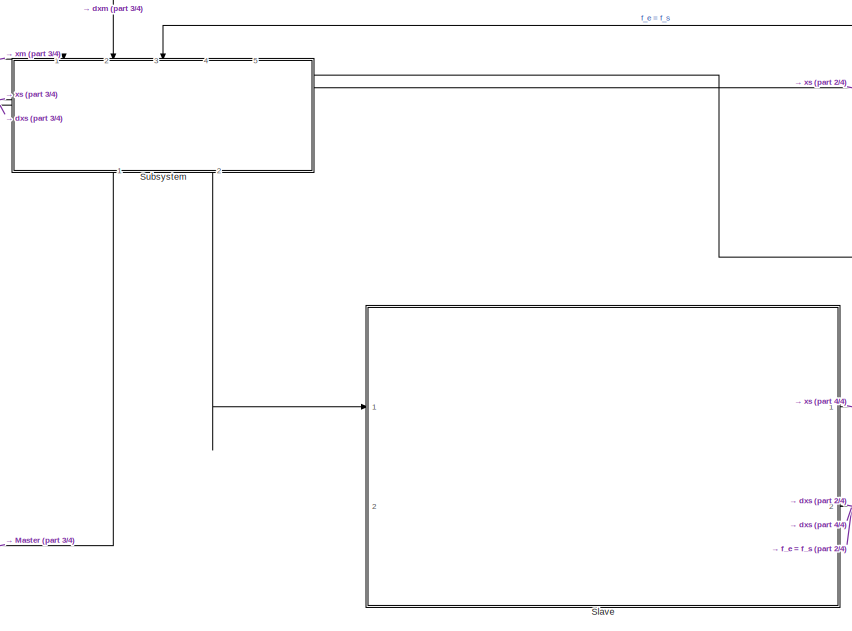
[diagram: root canvas - part 1/4, top center region]
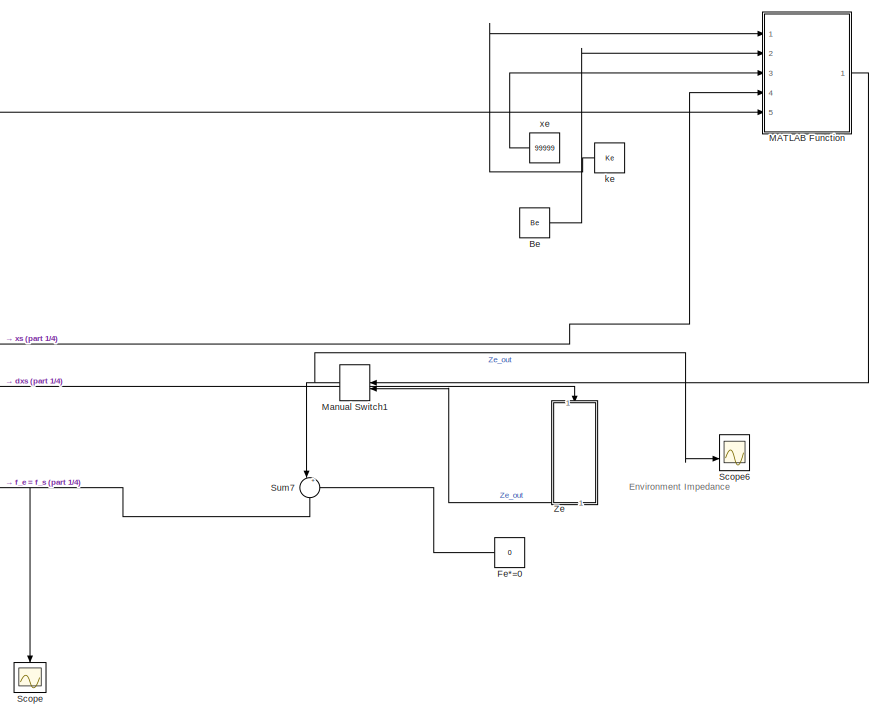
[diagram: root canvas - part 2/4, middle right region]
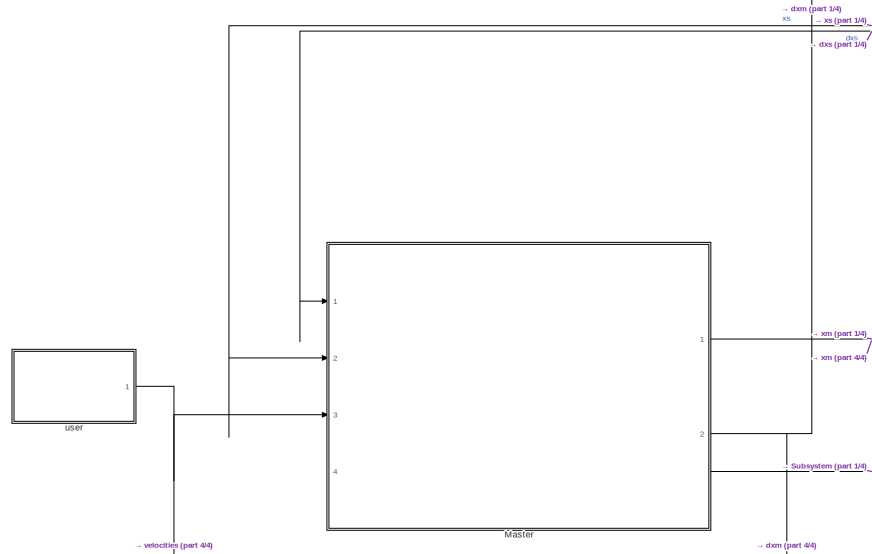
[diagram: root canvas - part 3/4, top left region]
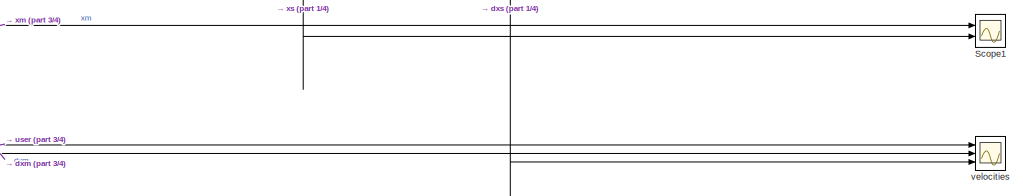
[diagram: root canvas - part 4/4, bottom center region]
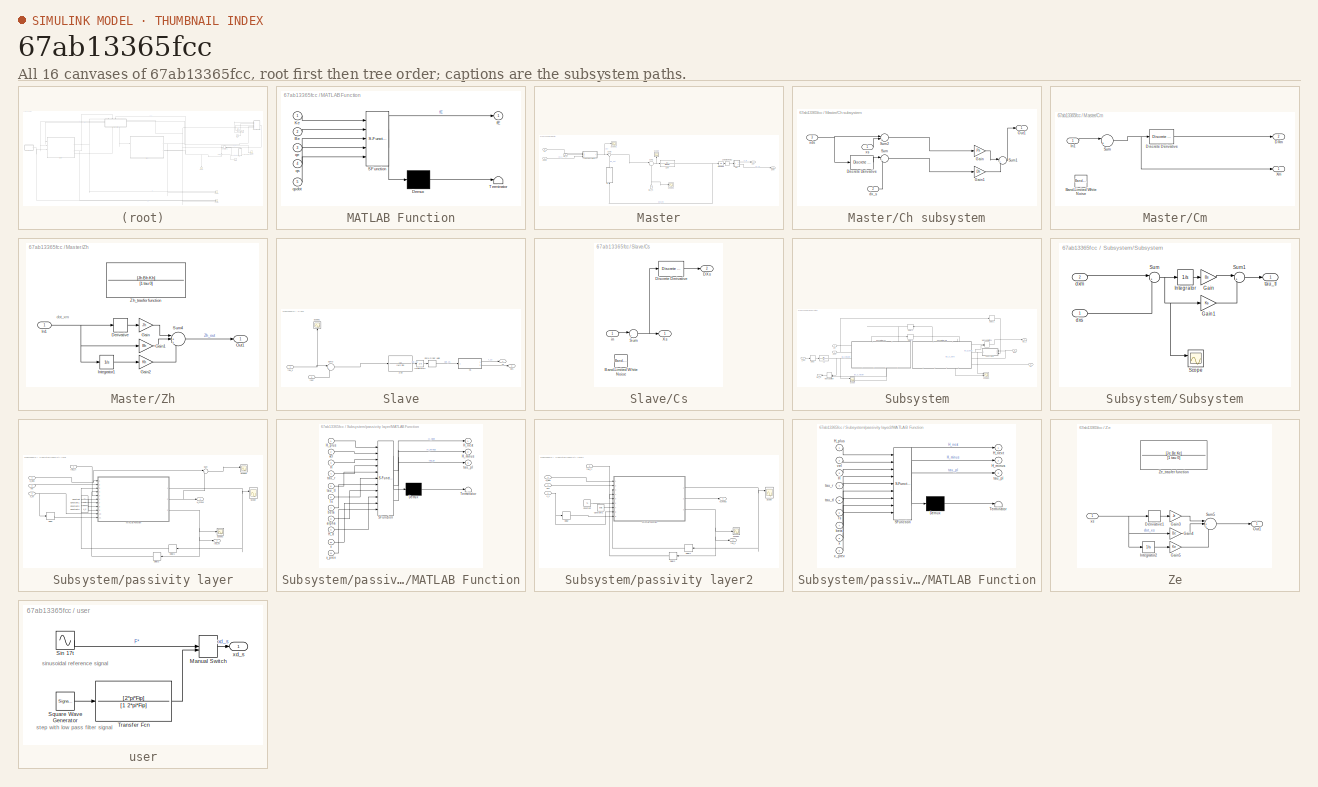
[diagram: thumbnail index - all 16 canvases of the model, root first then tree order]
MODEL slx_67ab13365fcc
KIND model
CONFIG AbsTol = auto
CONFIG EnableMultiTasking = off
CONFIG FixedStep = Ts
CONFIG MaxStep = auto
CONFIG MinStep = auto
CONFIG RelTol = 1e-3
CONFIG SampleTimeConstraint = Unconstrained
CONFIG SolverName = FixedStepAuto
CONFIG StartTime = 0.0
CONFIG StopTime = 10
BLOCK [Constant] Be
  NameLocation = top
  Value = Be
BLOCK [Constant] Fe*=0
  Value = 0
BLOCK [SubSystem] MATLAB Function
  ErrorFcn = Stateflow.Translate.translate
  PermitHierarchicalResolution = ExplicitOnly
  Ports = [5, 1]
  RequestExecContextInheritance = off
  SFBlockType = MATLAB Function
  TreatAsAtomicUnit = on
BLOCK [Demux] MATLAB Function/ Demux 
  Outputs = 1
  Ports = [1, 1]
BLOCK [S-Function] MATLAB Function/ SFunction 
  EnableBusSupport = on
  FunctionName = sf_sfun
  PortCounts = [5 2]
  Ports = [5, 2]
  SFcnIsStateOwnerBlock = off
  SFunctionDeploymentMode = off
  Tag = Stateflow S-Function 2
BLOCK [Terminator] MATLAB Function/ Terminator 
BLOCK [Inport] MATLAB Function/Be
  Port = 2
BLOCK [Inport] MATLAB Function/Ke
BLOCK [Outport] MATLAB Function/fE
BLOCK [Inport] MATLAB Function/qe
  Port = 3
BLOCK [Inport] MATLAB Function/qs
  Port = 4
BLOCK [Inport] MATLAB Function/qsdot
  Port = 5
BLOCK [ManualSwitch] Manual Switch1
  CurrentSetting = 0
  NameLocation = top
BLOCK [SubSystem] Master
  PortSchema = {"entries":[{"content":{"sides":[{"content":{"connectorIds":["In1","In2","In3"]},"type":"ConnectorPlacement.EquallySpacedRectSide","uuid":"1611af17-d019-4ea0-b30f-82f2e4a8e750"},{"content":{"connectorIds":["Out1","Out2"],"side":"RIGHT"},"type":"ConnectorPlacement.EquallySpacedRectSide","uuid":"216ac5d0-4324-4f7d-99ca-2c077bed0ff3"},{"content":{"connectorIds":["In4"],"side":"TOP"},"type":"Connector...<+264ch>
  Ports = [4, 2]
  RequestExecContextInheritance = off
BLOCK [TransferFcn] Master/1//Zm
  Denominator = [Mm Dm]
  NameLocation = top
BLOCK [SubSystem] Master/Ch subsystem
  Ports = [3, 1]
  RequestExecContextInheritance = off
BLOCK [Reference] Master/Ch subsystem/Discrete Derivative  REF=simulink/Discrete/Discrete Derivative
  Ports = [1, 1]
  SourceBlock = simulink/Discrete/Discrete Derivative
  SourceProductBaseCode = SL
  SourceType = Discrete Derivative
BLOCK [Gain] Master/Ch subsystem/Gain
  Gain = Ph
BLOCK [Gain] Master/Ch subsystem/Gain1
  Gain = Dh
BLOCK [Outport] Master/Ch subsystem/Out1
BLOCK [Sum] Master/Ch subsystem/Sum
  Inputs = |+-
  Ports = [2, 1]
BLOCK [Sum] Master/Ch subsystem/Sum1
  Inputs = |++
  Ports = [2, 1]
BLOCK [Sum] Master/Ch subsystem/Sum2
  Inputs = |+-
  Ports = [2, 1]
BLOCK [Inport] Master/Ch subsystem/dx_s
  Port = 2
BLOCK [Inport] Master/Ch subsystem/xds
  Port = 3
BLOCK [Inport] Master/Ch subsystem/xs
BLOCK [SubSystem] Master/Cm
  Ports = [1, 2]
  RequestExecContextInheritance = off
BLOCK [Reference] Master/Cm/Band-Limited White Noise  REF=simulink/Sources/Band-Limited
White Noise
  Ports = [0, 1]
  SourceBlock = simulink/Sources/Band-Limited\nWhite Noise
  SourceProductBaseCode = SL
  SourceType = Band-Limited White Noise.
BLOCK [Outport] Master/Cm/DXm
  Port = 2
BLOCK [Reference] Master/Cm/Discrete Derivative  REF=simulink/Discrete/Discrete Derivative
  Ports = [1, 1]
  SourceBlock = simulink/Discrete/Discrete Derivative
  SourceProductBaseCode = SL
  SourceType = Discrete Derivative
BLOCK [Inport] Master/Cm/In1
BLOCK [Sum] Master/Cm/Sum
  Inputs = |++
  Ports = [2, 1]
BLOCK [Outport] Master/Cm/Xm
BLOCK [Outport] Master/DXm
  Port = 2
BLOCK [Integrator] Master/Integrator3
  Ports = [1, 1]
BLOCK [Scope] Master/Scope
  Floating = off
  NameLocation = right
  NumInputPorts = 1
  Ports = [1]
  ScopeSpecificationString = Simulink.scopes.TimeScopeBlockCfg('CurrentConfiguration', extmgr.ConfigurationSet(extmgr.Configuration('Core','General UI',true),extmgr.Configuration('Core','Source UI',true),extmgr.Configuration('Sources','WiredSimulink',true,'DataLoggingVariableName','ScopeData3'),extmgr.Configuration('Visuals','Time Domain',true,'SerializedDisplays',{struct('MinYLimReal','-4.96228','MaxYLimReal','18.04826','YLa...<+1483ch>
BLOCK [Scope] Master/Scope1
  Floating = off
  NumInputPorts = 1
  Ports = [1]
  ScopeSpecificationString = Simulink.scopes.TimeScopeBlockCfg('CurrentConfiguration', extmgr.ConfigurationSet(extmgr.Configuration('Core','General UI',true),extmgr.Configuration('Core','Source UI',true),extmgr.Configuration('Sources','WiredSimulink',true,'DataLoggingVariableName','ScopeData4'),extmgr.Configuration('Visuals','Time Domain',true,'SerializedDisplays',{struct('MinYLimReal','-23.29207','MaxYLimReal','24.17639','YL...<+1393ch>
BLOCK [Scope] Master/Scope2
  Floating = off
  NumInputPorts = 1
  Ports = [1]
  ScopeSpecificationString = Simulink.scopes.TimeScopeBlockCfg('CurrentConfiguration', extmgr.ConfigurationSet(extmgr.Configuration('Core','General UI',true),extmgr.Configuration('Core','Source UI',true),extmgr.Configuration('Sources','WiredSimulink',true,'DataLoggingVariableName','ScopeData3'),extmgr.Configuration('Visuals','Time Domain',true,'SerializedDisplays',{struct('MinYLimReal','-4.41108','MaxYLimReal','4.01128','YLab...<+1364ch>
BLOCK [Sum] Master/Sum1
  Inputs = |+-
  Ports = [2, 1]
BLOCK [Sum] Master/Sum2
  Inputs = |+-
  Ports = [2, 1]
BLOCK [ZeroOrderHold] Master/Zero-Order Hold2
  SampleTime = -1
BLOCK [SubSystem] Master/Zh
  NameLocation = right
  Ports = [1, 1]
  RequestExecContextInheritance = off
BLOCK [Derivative] Master/Zh/Derivative
BLOCK [Gain] Master/Zh/Gain
  Gain = Jh
BLOCK [Gain] Master/Zh/Gain1
  Gain = Bh
BLOCK [Gain] Master/Zh/Gain2
  Gain = Kh
BLOCK [Inport] Master/Zh/In1
BLOCK [Integrator] Master/Zh/Integrator1
  Ports = [1, 1]
BLOCK [Outport] Master/Zh/Out1
BLOCK [Sum] Master/Zh/Sum4
  Inputs = |+++
  Ports = [3, 1]
BLOCK [TransferFcn] Master/Zh/Zh_trasfer function
  Commented = on
  Denominator = [1 tau 0]
  NameLocation = right
  Numerator = [Jh Bh Kh]
BLOCK [Inport] Master/dx_s
BLOCK [Inport] Master/pose
  Port = 3
BLOCK [Inport] Master/tau_m
  NameLocation = right
  Port = 4
BLOCK [Outport] Master/xm
BLOCK [Inport] Master/xs
  Port = 2
BLOCK [Scope] Scope
  Floating = off
  NameLocation = left
  NumInputPorts = 1
  Ports = [1]
  ScopeSpecificationString = Simulink.scopes.TimeScopeBlockCfg('CurrentConfiguration', extmgr.ConfigurationSet(extmgr.Configuration('Core','General UI',true),extmgr.Configuration('Core','Source UI',true),extmgr.Configuration('Sources','WiredSimulink',true,'DataLoggingVariableName','ScopeData2'),extmgr.Configuration('Visuals','Time Domain',true,'SerializedDisplays',{struct('MinYLimReal','-4.21999','MaxYLimReal','4.20821','YLab...<+1403ch>
BLOCK [Scope] Scope1
  Floating = off
  NumInputPorts = 2
  Ports = [2]
  ScopeSpecificationString = Simulink.scopes.TimeScopeBlockCfg('CurrentConfiguration', extmgr.ConfigurationSet(extmgr.Configuration('Core','General UI',true,'FigureColor',[0.941176470588235 0.941176470588235 0.941176470588235]),extmgr.Configuration('Core','Source UI',true),extmgr.Configuration('Sources','WiredSimulink',true,'DataLoggingVariableName','ScopeData1'),extmgr.Configuration('Visuals','Time Domain',true,'SerializedDi...<+1775ch>
BLOCK [Scope] Scope6
  Floating = off
  NumInputPorts = 2
  Ports = [2]
  ScopeSpecificationString = Simulink.scopes.TimeScopeBlockCfg('CurrentConfiguration', extmgr.ConfigurationSet(extmgr.Configuration('Core','General UI',true),extmgr.Configuration('Core','Source UI',true),extmgr.Configuration('Sources','WiredSimulink',true,'DataLoggingVariableName','ScopeData7'),extmgr.Configuration('Visuals','Time Domain',true,'SerializedDisplays',{struct('MinYLimReal','-1.00000','MaxYLimReal','1.00000','YLab...<+2090ch>
BLOCK [SubSystem] Slave
  PortSchema = {"entries":[{"content":{"sides":[{"content":{"connectorIds":["In1"]},"type":"ConnectorPlacement.EquallySpacedRectSide","uuid":"78b98c26-b3b3-4c1c-a2a9-2b1f81ca7a96"},{"content":{"connectorIds":["Out1","Out2","In2"],"side":"RIGHT"},"type":"ConnectorPlacement.EquallySpacedRectSide","uuid":"d1781ab8-1e84-4ce0-bcac-f4a6da9bce42"},{"content":{"connectorIds":[],"side":"TOP"},"type":"ConnectorPlacement.E...<+253ch>
  Ports = [2, 2]
  RequestExecContextInheritance = off
BLOCK [TransferFcn] Slave/1//Zs
  Denominator = [Ms Ds]
  NameLocation = top
BLOCK [SubSystem] Slave/Cs
  Ports = [1, 2]
  RequestExecContextInheritance = off
BLOCK [Reference] Slave/Cs/Band-Limited White Noise  REF=simulink/Sources/Band-Limited
White Noise
  Ports = [0, 1]
  SourceBlock = simulink/Sources/Band-Limited\nWhite Noise
  SourceProductBaseCode = SL
  SourceType = Band-Limited White Noise.
BLOCK [Outport] Slave/Cs/DXs
  Port = 2
BLOCK [Reference] Slave/Cs/Discrete Derivative  REF=simulink/Discrete/Discrete Derivative
  Ports = [1, 1]
  SourceBlock = simulink/Discrete/Discrete Derivative
  SourceProductBaseCode = SL
  SourceType = Discrete Derivative
BLOCK [Sum] Slave/Cs/Sum
  Inputs = |++
  Ports = [2, 1]
BLOCK [Outport] Slave/Cs/Xs
BLOCK [Inport] Slave/Cs/in
BLOCK [Integrator] Slave/Integrator2
  Ports = [1, 1]
BLOCK [Scope] Slave/Scope1
  Floating = off
  NameLocation = right
  NumInputPorts = 1
  Ports = [1]
  ScopeSpecificationString = Simulink.scopes.TimeScopeBlockCfg('CurrentConfiguration', extmgr.ConfigurationSet(extmgr.Configuration('Core','General UI',true),extmgr.Configuration('Core','Source UI',true),extmgr.Configuration('Sources','WiredSimulink',true,'DataLoggingVariableName','ScopeData4'),extmgr.Configuration('Visuals','Time Domain',true,'SerializedDisplays',{struct('MinYLimReal','-46.74637','MaxYLimReal','38.49207','YL...<+1370ch>
BLOCK [Sum] Slave/Sum3
  Inputs = |+-
  Ports = [2, 1]
BLOCK [ZeroOrderHold] Slave/Zero-Order Hold
  SampleTime = -1
BLOCK [Outport] Slave/dxs
  Port = 2
BLOCK [Inport] Slave/fext
  Port = 2
BLOCK [Inport] Slave/tau_s
BLOCK [Outport] Slave/xs
BLOCK [SubSystem] Subsystem
  NameLocation = left
  Ports = [5, 2]
  RequestExecContextInheritance = off
BLOCK [Delay] Subsystem/Delay
  DelayLength = 1
  InputPortMap = u0
  Ports = [1, 1]
  SampleTime = Ts
BLOCK [Delay] Subsystem/Delay1
  DelayLength = 1
  InputPortMap = u0
  Ports = [1, 1]
  SampleTime = Ts
BLOCK [Delay] Subsystem/Delay2
  DelayLength = delay
  InputPortMap = u0
  NameLocation = top
  Ports = [1, 1]
  SampleTime = Ts
BLOCK [Delay] Subsystem/Delay3
  DelayLength = delay
  InputPortMap = u0
  Ports = [1, 1]
  SampleTime = Ts
BLOCK [ManualSwitch] Subsystem/Manual Switch
  CurrentSetting = 0
  NameLocation = top
BLOCK [ManualSwitch] Subsystem/Manual Switch1
BLOCK [Scope] Subsystem/Scope
  Floating = off
  NumInputPorts = 2
  Ports = [2]
  ScopeSpecificationString = Simulink.scopes.TimeScopeBlockCfg('CurrentConfiguration', extmgr.ConfigurationSet(extmgr.Configuration('Core','General UI',true,'FigureColor',[0.941176470588235 0.941176470588235 0.941176470588235]),extmgr.Configuration('Core','Source UI',true),extmgr.Configuration('Sources','WiredSimulink',true,'DataLoggingVariableName','ScopeData1'),extmgr.Configuration('Visuals','Time Domain',true,'SerializedDi...<+1782ch>
BLOCK [Scope] Subsystem/Scope2
  Floating = off
  NumInputPorts = 2
  Ports = [2]
  ScopeSpecificationString = Simulink.scopes.TimeScopeBlockCfg('CurrentConfiguration', extmgr.ConfigurationSet(extmgr.Configuration('Core','General UI',true,'FigureColor',[0.941176470588235 0.941176470588235 0.941176470588235]),extmgr.Configuration('Core','Source UI',true),extmgr.Configuration('Sources','WiredSimulink',true,'DataLoggingVariableName','ScopeData1'),extmgr.Configuration('Visuals','Time Domain',true,'SerializedDi...<+1790ch>
BLOCK [SubSystem] Subsystem/Subsystem
  NameLocation = top
  Ports = [2, 1]
  RequestExecContextInheritance = off
BLOCK [Gain] Subsystem/Subsystem/Gain
  Gain = Bs
BLOCK [Gain] Subsystem/Subsystem/Gain1
  Gain = Ks
BLOCK [Integrator] Subsystem/Subsystem/Integrator
  Ports = [1, 1]
BLOCK [Scope] Subsystem/Subsystem/Scope
  Floating = off
  NumInputPorts = 2
  Ports = [2]
  ScopeSpecificationString = Simulink.scopes.TimeScopeBlockCfg('CurrentConfiguration', extmgr.ConfigurationSet(extmgr.Configuration('Core','General UI',true),extmgr.Configuration('Core','Source UI',true),extmgr.Configuration('Sources','WiredSimulink',true,'DataLoggingVariableName','ScopeData5'),extmgr.Configuration('Visuals','Time Domain',true,'SerializedDisplays',{struct('MinYLimReal','-0.00046','MaxYLimReal','0.00031','YLab...<+1464ch>
BLOCK [Sum] Subsystem/Subsystem/Sum
  Inputs = |+-
  Ports = [2, 1]
BLOCK [Sum] Subsystem/Subsystem/Sum1
  Inputs = |++
  Ports = [2, 1]
BLOCK [Inport] Subsystem/Subsystem/dxm
  Port = 2
BLOCK [Inport] Subsystem/Subsystem/dxs
BLOCK [Outport] Subsystem/Subsystem/tau_tl
BLOCK [TransferFcn] Subsystem/c2
  Denominator = [1]
BLOCK [Inport] Subsystem/dxm
  Port = 2
BLOCK [Inport] Subsystem/dxs
  NameLocation = top
  Port = 5
BLOCK [Inport] Subsystem/f_ext
  Port = 3
BLOCK [SubSystem] Subsystem/passivity layer
  PortSchema = {"entries":[{"content":{"sides":[{"content":{"connectorIds":[]},"type":"ConnectorPlacement.EquallySpacedRectSide","uuid":"37bc6a68-8a11-4e98-9ac3-187f52517b60"},{"content":{"connectorIds":["In4","Out1"],"side":"RIGHT"},"type":"ConnectorPlacement.EquallySpacedRectSide","uuid":"8a8e0676-f09b-4900-bb42-b008c53363bc"},{"content":{"connectorIds":["Out2","In1","In2","In3"],"side":"TOP"},"type":"Connecto...<+409ch>
  Ports = [4, 2]
  RequestExecContextInheritance = off
BLOCK [Constant] Subsystem/passivity layer/Constant
  Value = Ts
BLOCK [Constant] Subsystem/passivity layer/Constant1
  Value = beta
BLOCK [Constant] Subsystem/passivity layer/Constant2
  Value = alpha
BLOCK [Constant] Subsystem/passivity layer/Constant3
  Value = H_d
BLOCK [Delay] Subsystem/passivity layer/Delay
  DelayLength = 1
  InputPortMap = u0
  Ports = [1, 1]
  SampleTime = Ts
BLOCK [Delay] Subsystem/passivity layer/Delay1
  DelayLength = delay
  InitialCondition = 0
  InputPortMap = u0
  NameLocation = top
  Ports = [1, 1]
  SampleTime = Ts
BLOCK [Delay] Subsystem/passivity layer/Delay2
  DelayLength = delay
  InitialCondition = 0
  InputPortMap = u0
  NameLocation = top
  Ports = [1, 1]
  SampleTime = Ts
BLOCK [Outport] Subsystem/passivity layer/H_minus
BLOCK [Inport] Subsystem/passivity layer/H_plus
  Port = 4
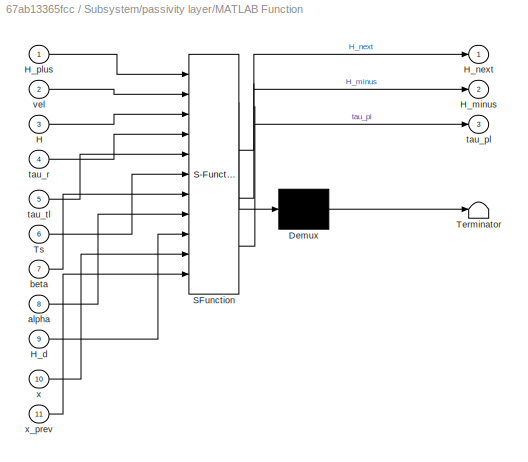
BLOCK [SubSystem] Subsystem/passivity layer/MATLAB Function
  ErrorFcn = Stateflow.Translate.translate
  PermitHierarchicalResolution = ExplicitOnly
  Ports = [11, 3]
  RequestExecContextInheritance = off
  SFBlockType = MATLAB Function
  TreatAsAtomicUnit = on
BLOCK [Demux] Subsystem/passivity layer/MATLAB Function/ Demux 
  Outputs = 1
  Ports = [1, 1]
BLOCK [S-Function] Subsystem/passivity layer/MATLAB Function/ SFunction 
  EnableBusSupport = on
  FunctionName = sf_sfun
  PortCounts = [11 4]
  Ports = [11, 4]
  SFcnIsStateOwnerBlock = off
  SFunctionDeploymentMode = off
  Tag = Stateflow S-Function 3
BLOCK [Terminator] Subsystem/passivity layer/MATLAB Function/ Terminator 
BLOCK [Inport] Subsystem/passivity layer/MATLAB Function/H
  Port = 3
BLOCK [Inport] Subsystem/passivity layer/MATLAB Function/H_d
  Port = 9
BLOCK [Outport] Subsystem/passivity layer/MATLAB Function/H_minus
  Port = 2
BLOCK [Outport] Subsystem/passivity layer/MATLAB Function/H_next
BLOCK [Inport] Subsystem/passivity layer/MATLAB Function/H_plus
BLOCK [Inport] Subsystem/passivity layer/MATLAB Function/Ts
  Port = 6
BLOCK [Inport] Subsystem/passivity layer/MATLAB Function/alpha
  Port = 8
BLOCK [Inport] Subsystem/passivity layer/MATLAB Function/beta
  Port = 7
BLOCK [Outport] Subsystem/passivity layer/MATLAB Function/tau_pl
  Port = 3
BLOCK [Inport] Subsystem/passivity layer/MATLAB Function/tau_r
  Port = 4
BLOCK [Inport] Subsystem/passivity layer/MATLAB Function/tau_tl
  Port = 5
BLOCK [Inport] Subsystem/passivity layer/MATLAB Function/vel
  Port = 2
BLOCK [Inport] Subsystem/passivity layer/MATLAB Function/x
  Port = 10
BLOCK [Inport] Subsystem/passivity layer/MATLAB Function/x_prev
  Port = 11
BLOCK [Scope] Subsystem/passivity layer/Scope
  Floating = off
  NumInputPorts = 2
  Ports = [2]
  ScopeSpecificationString = Simulink.scopes.TimeScopeBlockCfg('CurrentConfiguration', extmgr.ConfigurationSet(extmgr.Configuration('Core','General UI',true),extmgr.Configuration('Core','Source UI',true),extmgr.Configuration('Sources','WiredSimulink',true,'DataLoggingVariableName','ScopeData1'),extmgr.Configuration('Visuals','Time Domain',true,'SerializedDisplays',{struct('MinYLimReal','-0.7682','MaxYLimReal','6.91382','YLabe...<+1617ch>
BLOCK [Scope] Subsystem/passivity layer/Scope2
  Floating = off
  NumInputPorts = 1
  Ports = [1]
  ScopeSpecificationString = Simulink.scopes.TimeScopeBlockCfg('CurrentConfiguration', extmgr.ConfigurationSet(extmgr.Configuration('Core','General UI',true),extmgr.Configuration('Core','Source UI',true),extmgr.Configuration('Sources','WiredSimulink',true,'DataLoggingVariableName','ScopeData2'),extmgr.Configuration('Visuals','Time Domain',true,'SerializedDisplays',{struct('MinYLimReal','-4.41108','MaxYLimReal','4.01128','YLab...<+1406ch>
BLOCK [Scope] Subsystem/passivity layer/Scope3
  Floating = off
  NumInputPorts = 2
  Ports = [2]
  ScopeSpecificationString = Simulink.scopes.TimeScopeBlockCfg('CurrentConfiguration', extmgr.ConfigurationSet(extmgr.Configuration('Core','General UI',true),extmgr.Configuration('Core','Source UI',true),extmgr.Configuration('Sources','WiredSimulink',true,'DataLoggingVariableName','ScopeData1'),extmgr.Configuration('Visuals','Time Domain',true,'SerializedDisplays',{struct('MinYLimReal','-0.14674','MaxYLimReal','0.0163','YLabe...<+1418ch>
BLOCK [Sum] Subsystem/passivity layer/Sum
  Inputs = |+-
  Ports = [2, 1]
BLOCK [Outport] Subsystem/passivity layer/tau_m
  Port = 2
BLOCK [Inport] Subsystem/passivity layer/tau_tl
BLOCK [Inport] Subsystem/passivity layer/vel
  Port = 2
BLOCK [Inport] Subsystem/passivity layer/x_m
  Port = 3
BLOCK [SubSystem] Subsystem/passivity layer2
  PortSchema = {"entries":[{"content":{"sides":[{"content":{"connectorIds":[]},"type":"ConnectorPlacement.EquallySpacedRectSide","uuid":"37bc6a68-8a11-4e98-9ac3-187f52517b60"},{"content":{"connectorIds":["In4","Out1"],"side":"RIGHT"},"type":"ConnectorPlacement.EquallySpacedRectSide","uuid":"8a8e0676-f09b-4900-bb42-b008c53363bc"},{"content":{"connectorIds":[],"side":"TOP"},"type":"ConnectorPlacement.EquallySpaced...<+409ch>
  Ports = [4, 2]
  RequestExecContextInheritance = off
BLOCK [Constant] Subsystem/passivity layer2/Constant
  Value = Ts
BLOCK [Constant] Subsystem/passivity layer2/Constant1
  Value = beta
BLOCK [Delay] Subsystem/passivity layer2/Delay
  DelayLength = 1
  InputPortMap = u0
  Ports = [1, 1]
  SampleTime = Ts
BLOCK [Delay] Subsystem/passivity layer2/Delay1
  DelayLength = delay
  InitialCondition = 0
  InputPortMap = u0
  NameLocation = top
  Ports = [1, 1]
  SampleTime = Ts
BLOCK [Delay] Subsystem/passivity layer2/Delay2
  DelayLength = delay
  InitialCondition = 0
  InputPortMap = u0
  NameLocation = top
  Ports = [1, 1]
  SampleTime = Ts
BLOCK [Outport] Subsystem/passivity layer2/H_minus
BLOCK [Inport] Subsystem/passivity layer2/H_plus
  Port = 4
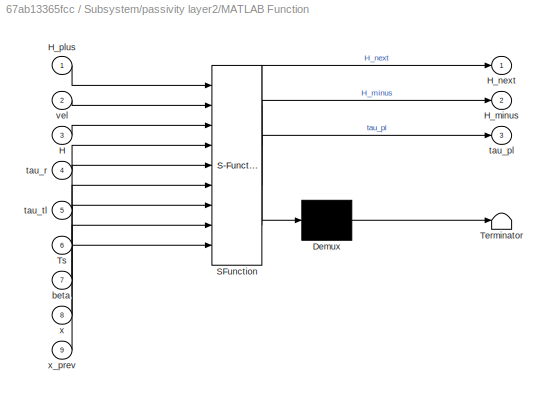
BLOCK [SubSystem] Subsystem/passivity layer2/MATLAB Function
  ErrorFcn = Stateflow.Translate.translate
  PermitHierarchicalResolution = ExplicitOnly
  Ports = [9, 3]
  RequestExecContextInheritance = off
  SFBlockType = MATLAB Function
  TreatAsAtomicUnit = on
BLOCK [Demux] Subsystem/passivity layer2/MATLAB Function/ Demux 
  Outputs = 1
  Ports = [1, 1]
BLOCK [S-Function] Subsystem/passivity layer2/MATLAB Function/ SFunction 
  EnableBusSupport = on
  FunctionName = sf_sfun
  PortCounts = [9 4]
  Ports = [9, 4]
  SFcnIsStateOwnerBlock = off
  SFunctionDeploymentMode = off
  Tag = Stateflow S-Function 1
BLOCK [Terminator] Subsystem/passivity layer2/MATLAB Function/ Terminator 
BLOCK [Inport] Subsystem/passivity layer2/MATLAB Function/H
  Port = 3
BLOCK [Outport] Subsystem/passivity layer2/MATLAB Function/H_minus
  Port = 2
BLOCK [Outport] Subsystem/passivity layer2/MATLAB Function/H_next
BLOCK [Inport] Subsystem/passivity layer2/MATLAB Function/H_plus
BLOCK [Inport] Subsystem/passivity layer2/MATLAB Function/Ts
  Port = 6
BLOCK [Inport] Subsystem/passivity layer2/MATLAB Function/beta
  Port = 7
BLOCK [Outport] Subsystem/passivity layer2/MATLAB Function/tau_pl
  Port = 3
BLOCK [Inport] Subsystem/passivity layer2/MATLAB Function/tau_r
  Port = 4
BLOCK [Inport] Subsystem/passivity layer2/MATLAB Function/tau_tl
  Port = 5
BLOCK [Inport] Subsystem/passivity layer2/MATLAB Function/vel
  Port = 2
BLOCK [Inport] Subsystem/passivity layer2/MATLAB Function/x
  Port = 8
BLOCK [Inport] Subsystem/passivity layer2/MATLAB Function/x_prev
  Port = 9
BLOCK [Scope] Subsystem/passivity layer2/Scope
  Floating = off
  NumInputPorts = 2
  Ports = [2]
  ScopeSpecificationString = Simulink.scopes.TimeScopeBlockCfg('CurrentConfiguration', extmgr.ConfigurationSet(extmgr.Configuration('Core','General UI',true),extmgr.Configuration('Core','Source UI',true),extmgr.Configuration('Sources','WiredSimulink',true,'DataLoggingVariableName','ScopeData1'),extmgr.Configuration('Visuals','Time Domain',true,'SerializedDisplays',{struct('MinYLimReal','-0.76829','MaxYLimReal','6.91371','YLab...<+1464ch>
BLOCK [Scope] Subsystem/passivity layer2/Scope2
  Floating = off
  NumInputPorts = 1
  Ports = [1]
  ScopeSpecificationString = Simulink.scopes.TimeScopeBlockCfg('CurrentConfiguration', extmgr.ConfigurationSet(extmgr.Configuration('Core','General UI',true),extmgr.Configuration('Core','Source UI',true),extmgr.Configuration('Sources','WiredSimulink',true,'DataLoggingVariableName','ScopeData2'),extmgr.Configuration('Visuals','Time Domain',true,'SerializedDisplays',{struct('MinYLimReal','-22.55645','MaxYLimReal','6.03241','YLa...<+1385ch>
BLOCK [Inport] Subsystem/passivity layer2/dxs
  Port = 2
BLOCK [Outport] Subsystem/passivity layer2/tau_s
  Port = 2
BLOCK [Inport] Subsystem/passivity layer2/tau_tl
  Port = 3
BLOCK [Inport] Subsystem/passivity layer2/x_s
BLOCK [Outport] Subsystem/tau_m
BLOCK [Outport] Subsystem/tau_s
  Port = 2
BLOCK [Inport] Subsystem/xm
BLOCK [Inport] Subsystem/xs
  NameLocation = top
  Port = 4
BLOCK [Sum] Sum7
  Inputs = |++
  NameLocation = right
  Ports = [2, 1]
BLOCK [SubSystem] Ze
  NameLocation = left
  Ports = [1, 1]
  RequestExecContextInheritance = off
BLOCK [Derivative] Ze/Derivative1
BLOCK [Gain] Ze/Gain3
  Gain = Je
BLOCK [Gain] Ze/Gain4
  Gain = Be
BLOCK [Gain] Ze/Gain5
  Gain = Ke
BLOCK [Integrator] Ze/Integrator2
  Ports = [1, 1]
BLOCK [Outport] Ze/Out1
BLOCK [Sum] Ze/Sum5
  Inputs = |+++
  Ports = [3, 1]
BLOCK [TransferFcn] Ze/Ze_trasfer function
  Commented = on
  Denominator = [1 tau 0]
  NameLocation = right
  Numerator = [Je Be Ke]
BLOCK [Inport] Ze/xs
BLOCK [Constant] ke
  Value = Ke
BLOCK [SubSystem] user
  Ports = [0, 1]
  RequestExecContextInheritance = off
BLOCK [ManualSwitch] user/Manual Switch
BLOCK [Sin] user/Sin 17t
  Amplitude = 0.5
  Frequency = 2*pi*0.5
  Ports = [0, 1]
  SampleTime = Ts
BLOCK [SignalGenerator] user/Square Wave Generator
  Ports = [0, 1]
  Units = rad/sec
  WaveForm = square
BLOCK [TransferFcn] user/Transfer Fcn
  Denominator = [1 2*pi*Fip]
  Numerator = [2*pi*Fip]
BLOCK [Outport] user/xd_s
BLOCK [Scope] velocities
  Floating = off
  NumInputPorts = 3
  Ports = [3]
  ScopeSpecificationString = Simulink.scopes.TimeScopeBlockCfg('CurrentConfiguration', extmgr.ConfigurationSet(extmgr.Configuration('Core','General UI',true,'FigureColor',[0.941176470588235 0.941176470588235 0.941176470588235]),extmgr.Configuration('Core','Source UI',true),extmgr.Configuration('Sources','WiredSimulink',true,'DataLoggingVariableName','ScopeData7'),extmgr.Configuration('Visuals','Time Domain',true,'SerializedDi...<+1913ch>
BLOCK [Constant] xe
  Value = 99999
ANNOTATION (root): Environment Impedance
ANNOTATION Master/Zh: dot_xm
ANNOTATION user: sinusoidal reference signal
ANNOTATION user: step with low pass filter signal
LINE Be:1 -> MATLAB Function:2
LINE Fe*=0:1 -> Sum7:2
LINE MATLAB Function:1 -> Manual Switch1:1
NET Manual Switch1:1 -> Scope6:2, Sum7:1
NET Master/1//Zm:1 -> Master/Integrator3:1, Master/Zh:1
LINE Master/Ch subsystem/Discrete Derivative:1 -> Master/Ch subsystem/Sum:1
LINE Master/Ch subsystem/Gain1:1 -> Master/Ch subsystem/Sum1:2
LINE Master/Ch subsystem/Gain:1 -> Master/Ch subsystem/Sum1:1
LINE Master/Ch subsystem/Sum1:1 -> Master/Ch subsystem/Out1:1
LINE Master/Ch subsystem/Sum2:1 -> Master/Ch subsystem/Gain:1
LINE Master/Ch subsystem/Sum:1 -> Master/Ch subsystem/Gain1:1
LINE Master/Ch subsystem/dx_s:1 -> Master/Ch subsystem/Sum:2
NET Master/Ch subsystem/xds:1 -> Master/Ch subsystem/Discrete Derivative:1, Master/Ch subsystem/Sum2:1
LINE Master/Ch subsystem/xs:1 -> Master/Ch subsystem/Sum2:2
NET Master/Ch subsystem:1 -> Master/Scope1:1, Master/Sum2:1
LINE Master/Cm/Discrete Derivative:1 -> Master/Cm/DXm:1
LINE Master/Cm/In1:1 -> Master/Cm/Sum:1
NET Master/Cm/Sum:1 -> Master/Cm/Discrete Derivative:1, Master/Cm/Xm:1
LINE Master/Cm:1 -> Master/xm:1
LINE Master/Cm:2 -> Master/DXm:1
LINE Master/Integrator3:1 -> Master/Zero-Order Hold2:1
NET Master/Sum1:1 -> Master/1//Zm:1, Master/Scope:1
LINE Master/Sum2:1 -> Master/Sum1:1
LINE Master/Zero-Order Hold2:1 -> Master/Cm:1
LINE Master/Zh/Derivative:1 -> Master/Zh/Gain:1
LINE Master/Zh/Gain1:1 -> Master/Zh/Sum4:2
LINE Master/Zh/Gain2:1 -> Master/Zh/Sum4:3
LINE Master/Zh/Gain:1 -> Master/Zh/Sum4:1
NET Master/Zh/In1:1 -> Master/Zh/Derivative:1, Master/Zh/Gain1:1, Master/Zh/Integrator1:1
LINE Master/Zh/Integrator1:1 -> Master/Zh/Gain2:1
LINE Master/Zh/Sum4:1 -> Master/Zh/Out1:1
LINE Master/Zh:1 -> Master/Sum2:2
LINE Master/dx_s:1 -> Master/Ch subsystem:2
LINE Master/pose:1 -> Master/Ch subsystem:3
NET Master/tau_m:1 -> Master/Scope2:1, Master/Sum1:2
LINE Master/xs:1 -> Master/Ch subsystem:1
NET Master:1 -> Scope1:1, Subsystem:1
NET Master:2 -> Subsystem:2, velocities:2
LINE Slave/1//Zs:1 -> Slave/Integrator2:1
LINE Slave/Cs/Discrete Derivative:1 -> Slave/Cs/DXs:1
NET Slave/Cs/Sum:1 -> Slave/Cs/Discrete Derivative:1, Slave/Cs/Xs:1
LINE Slave/Cs/in:1 -> Slave/Cs/Sum:1
LINE Slave/Cs:1 -> Slave/xs:1
LINE Slave/Cs:2 -> Slave/dxs:1
LINE Slave/Integrator2:1 -> Slave/Zero-Order Hold:1
LINE Slave/Sum3:1 -> Slave/1//Zs:1
LINE Slave/Zero-Order Hold:1 -> Slave/Cs:1
LINE Slave/fext:1 -> Slave/Sum3:2
NET Slave/tau_s:1 -> Slave/Scope1:1, Slave/Sum3:1
NET Slave:1 -> MATLAB Function:4, Master:2, Scope1:2, Subsystem:4
NET Slave:2 -> MATLAB Function:5, Master:1, Subsystem:5, Ze:1, velocities:3
LINE Subsystem/Delay1:1 -> Subsystem/Subsystem:2
LINE Subsystem/Delay2:1 -> Subsystem/passivity layer:4
LINE Subsystem/Delay3:1 -> Subsystem/passivity layer2:4
LINE Subsystem/Delay:1 -> Subsystem/c2:1
LINE Subsystem/Manual Switch1:1 -> Subsystem/tau_s:1
LINE Subsystem/Manual Switch:1 -> Subsystem/tau_m:1
LINE Subsystem/Subsystem/Gain1:1 -> Subsystem/Subsystem/Sum1:2
LINE Subsystem/Subsystem/Gain:1 -> Subsystem/Subsystem/Sum1:1
LINE Subsystem/Subsystem/Integrator:1 -> Subsystem/Subsystem/Gain:1
LINE Subsystem/Subsystem/Sum1:1 -> Subsystem/Subsystem/tau_tl:1
NET Subsystem/Subsystem/Sum:1 -> Subsystem/Subsystem/Gain1:1, Subsystem/Subsystem/Integrator:1, Subsystem/Subsystem/Scope:1
LINE Subsystem/Subsystem/dxm:1 -> Subsystem/Subsystem/Sum:1
LINE Subsystem/Subsystem/dxs:1 -> Subsystem/Subsystem/Sum:2
NET Subsystem/Subsystem:1 -> Subsystem/Manual Switch1:2, Subsystem/Scope2:1, Subsystem/passivity layer2:3
NET Subsystem/c2:1 -> Subsystem/Manual Switch:1, Subsystem/Scope:1, Subsystem/passivity layer:1
NET Subsystem/dxm:1 -> Subsystem/Delay1:1, Subsystem/passivity layer:2
NET Subsystem/dxs:1 -> Subsystem/Subsystem:1, Subsystem/passivity layer2:2
LINE Subsystem/f_ext:1 -> Subsystem/Delay:1
LINE Subsystem/passivity layer/Constant1:1 -> Subsystem/passivity layer/MATLAB Function:7
LINE Subsystem/passivity layer/Constant2:1 -> Subsystem/passivity layer/MATLAB Function:8
LINE Subsystem/passivity layer/Constant3:1 -> Subsystem/passivity layer/MATLAB Function:9
LINE Subsystem/passivity layer/Constant:1 -> Subsystem/passivity layer/MATLAB Function:6
LINE Subsystem/passivity layer/Delay1:1 -> Subsystem/passivity layer/MATLAB Function:3
LINE Subsystem/passivity layer/Delay2:1 -> Subsystem/passivity layer/MATLAB Function:4
LINE Subsystem/passivity layer/Delay:1 -> Subsystem/passivity layer/MATLAB Function:11
NET Subsystem/passivity layer/H_plus:1 -> Subsystem/passivity layer/MATLAB Function:1, Subsystem/passivity layer/Sum:1
NET Subsystem/passivity layer/MATLAB Function:1 -> Subsystem/passivity layer/Delay1:1, Subsystem/passivity layer/Scope:1
NET Subsystem/passivity layer/MATLAB Function:2 -> Subsystem/passivity layer/H_minus:1, Subsystem/passivity layer/Sum:2
NET Subsystem/passivity layer/MATLAB Function:3 -> Subsystem/passivity layer/Delay2:1, Subsystem/passivity layer/Scope2:1, Subsystem/passivity layer/tau_m:1
LINE Subsystem/passivity layer/Sum:1 -> Subsystem/passivity layer/Scope3:1
LINE Subsystem/passivity layer/tau_tl:1 -> Subsystem/passivity layer/MATLAB Function:5
LINE Subsystem/passivity layer/vel:1 -> Subsystem/passivity layer/MATLAB Function:2
NET Subsystem/passivity layer/x_m:1 -> Subsystem/passivity layer/Delay:1, Subsystem/passivity layer/MATLAB Function:10
LINE Subsystem/passivity layer2/Constant1:1 -> Subsystem/passivity layer2/MATLAB Function:7
LINE Subsystem/passivity layer2/Constant:1 -> Subsystem/passivity layer2/MATLAB Function:6
LINE Subsystem/passivity layer2/Delay1:1 -> Subsystem/passivity layer2/MATLAB Function:3
LINE Subsystem/passivity layer2/Delay2:1 -> Subsystem/passivity layer2/MATLAB Function:4
LINE Subsystem/passivity layer2/Delay:1 -> Subsystem/passivity layer2/MATLAB Function:9
LINE Subsystem/passivity layer2/H_plus:1 -> Subsystem/passivity layer2/MATLAB Function:1
NET Subsystem/passivity layer2/MATLAB Function:1 -> Subsystem/passivity layer2/Delay1:1, Subsystem/passivity layer2/Scope:1
LINE Subsystem/passivity layer2/MATLAB Function:2 -> Subsystem/passivity layer2/H_minus:1
NET Subsystem/passivity layer2/MATLAB Function:3 -> Subsystem/passivity layer2/Delay2:1, Subsystem/passivity layer2/Scope2:1, Subsystem/passivity layer2/tau_s:1
LINE Subsystem/passivity layer2/dxs:1 -> Subsystem/passivity layer2/MATLAB Function:2
LINE Subsystem/passivity layer2/tau_tl:1 -> Subsystem/passivity layer2/MATLAB Function:5
NET Subsystem/passivity layer2/x_s:1 -> Subsystem/passivity layer2/Delay:1, Subsystem/passivity layer2/MATLAB Function:8
LINE Subsystem/passivity layer2:1 -> Subsystem/Delay2:1
NET Subsystem/passivity layer2:2 -> Subsystem/Manual Switch1:1, Subsystem/Scope2:2
LINE Subsystem/passivity layer:1 -> Subsystem/Delay3:1
NET Subsystem/passivity layer:2 -> Subsystem/Manual Switch:2, Subsystem/Scope:2
LINE Subsystem/xm:1 -> Subsystem/passivity layer:3
LINE Subsystem/xs:1 -> Subsystem/passivity layer2:1
LINE Subsystem:1 -> Master:4
LINE Subsystem:2 -> Slave:1
NET Sum7:1 -> Scope:1, Slave:2, Subsystem:3
LINE Ze/Derivative1:1 -> Ze/Gain3:1
LINE Ze/Gain3:1 -> Ze/Sum5:1
LINE Ze/Gain4:1 -> Ze/Sum5:2
LINE Ze/Gain5:1 -> Ze/Sum5:3
LINE Ze/Integrator2:1 -> Ze/Gain5:1
LINE Ze/Sum5:1 -> Ze/Out1:1
NET Ze/xs:1 -> Ze/Derivative1:1, Ze/Gain4:1, Ze/Integrator2:1
LINE Ze:1 -> Manual Switch1:2
LINE ke:1 -> MATLAB Function:1
LINE user/Manual Switch:1 -> user/xd_s:1
LINE user/Sin 17t:1 -> user/Manual Switch:1
LINE user/Square Wave Generator:1 -> user/Transfer Fcn:1
LINE user/Transfer Fcn:1 -> user/Manual Switch:2
NET user:1 -> Master:3, velocities:1
LINE xe:1 -> MATLAB Function:3
note: NET lines group one-source signal fan-out (src -> all destinations, sorted); 1:1 wires keep LINE
CHART Subsystem/passivity layer2/MATLAB Function states=1 transitions=1
  STATE_LABEL 'eML_blk_kernel()'
  STATE_LABEL 'SCRIPT:\nfunction [H_next,H_minus,tau_pl] = fcn(H_plus,vel,H,tau_r,tau_tl,Ts,beta,x,x_prev)\n\n\n\ndeltaH_i = tau_r * (x-x_prev);\n\n\nH_actual = H + H_plus - deltaH_i;\n\nH_minus = 0;\n\nif(H_actual > 0)\nH_minus =  beta*H_actual;\nend\n\nH_next = H_actual - H_minus;\n\ntau_max_1 = tau_tl;\nif(H_next <= 0)\n    tau_max_1 = 0;\nend\n\n\n\ntau_max_2 = H_next/(vel*Ts);\n\n\n\ntau_pl = sign(tau_tl)*min(abs([tau_tl,tau_max_1,tau_...<+11ch>'
CHART MATLAB Function states=1 transitions=1
  STATE_LABEL 'eML_blk_kernel()'
  STATE_LABEL 'SCRIPT:\nfunction fE = environment(Ke, Be, qe, qs, qsdot)\n    if qs > qe\n        fE = Ke * (qs - qe) + Be * qsdot;\n    else\n        fE = 0;\n    end\nend\n'
CHART Subsystem/passivity layer/MATLAB Function states=1 transitions=1
  STATE_LABEL 'eML_blk_kernel()'
  STATE_LABEL 'SCRIPT:\nfunction [H_next,H_minus,tau_pl] = fcn(H_plus,vel,H,tau_r,tau_tl,Ts,beta,alpha,H_d,x,x_prev)\n\n\ndeltaH_i = tau_r * (x-x_prev);\n\nH_actual = H + H_plus - deltaH_i;\n\nH_minus = 0;\n\n\nif(H_actual > 0)\nH_minus =  beta*H_actual;\nend\n\nH_next = H_actual - H_minus;\n\ntau_max_1 = tau_tl;\n\nif(H_next <= 0)\n    tau_max_1 = 0;\nend\n\ntau_max_2 = H_next/(vel*Ts);\n\n\nif(H_d > H_next)\n    tau_tlc = - alpha*(H_d -...<+175ch>'
CHART  states=0 transitions=0
CHART  states=0 transitions=0
CHART  states=0 transitions=0
